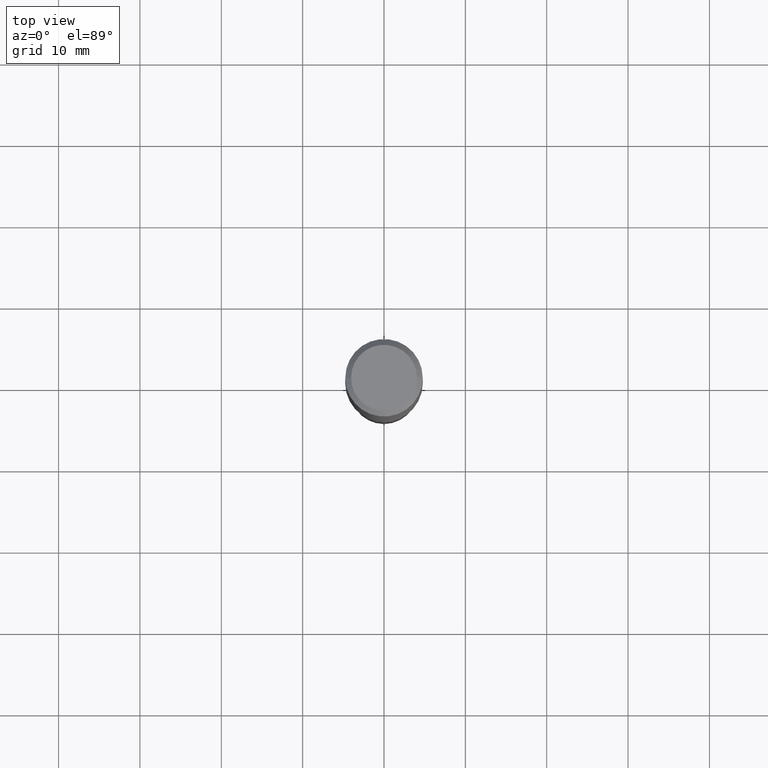
[diagram: clean part render]
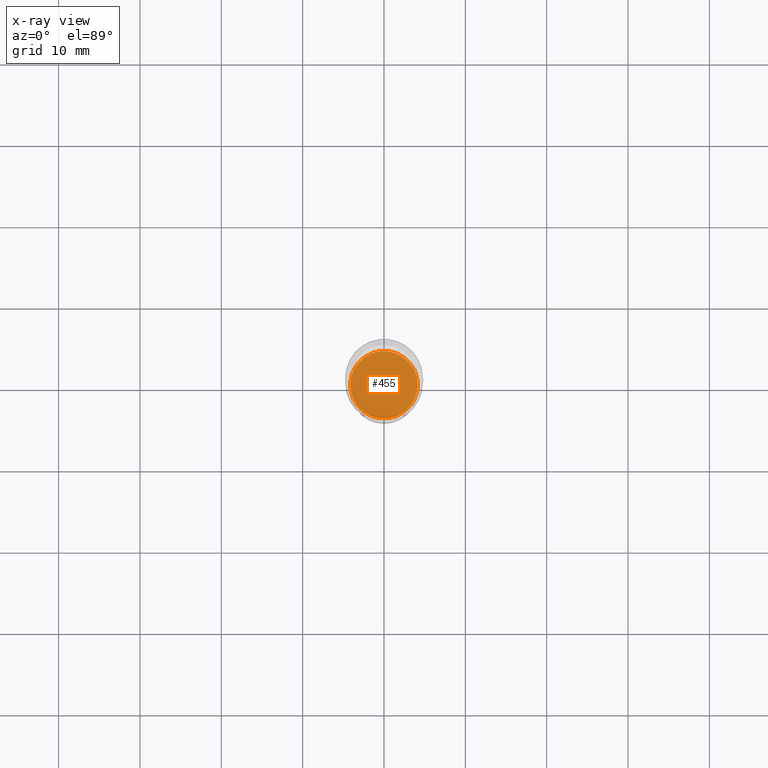
[diagram: x-ray — body ghosted, one internal face saturated and labeled with its STEP entity id]
A machine part, top view, then the same camera in x-ray: the body is ghosted and one INTERNAL B-rep face — a face not visible from any outside direction — is saturated and labeled: STEP entity #455.
In plain terms, the highlighted planar face has unit normal (-0, 0, 1).
Its self-contained STEP definition (entity closure, byte-faithful):
#51 = CARTESIAN_POINT ( 'NONE',  ( 0.1635500000000000009, -8.070209966602040664E-15, -1.984299999999999731 ) ) ;
#52 = DIRECTION ( 'NONE',  ( 1.000000000000000000, -6.982962677686265922E-15, 0.000000000000000000 ) ) ;
#66 = EDGE_CURVE ( 'NONE', #373, #424, #163, .T. ) ;
#86 = DIRECTION ( 'NONE',  ( 1.000000000000000000, -6.982962677686265922E-15, 4.876176775795935793E-29 ) ) ;
#120 = ORIENTED_EDGE ( 'NONE', *, *, #66, .F. ) ;
#154 = FACE_OUTER_BOUND ( 'NONE', #213, .T. ) ;
#163 = CIRCLE ( 'NONE', #226, 0.1635500000000000009 ) ;
#176 = ORIENTED_EDGE ( 'NONE', *, *, #278, .F. ) ;
#183 = DIRECTION ( 'NONE',  ( 1.000000000000000000, -6.982962677686265922E-15, 0.000000000000000000 ) ) ;
#185 = DIRECTION ( 'NONE',  ( -2.445468806185136597E-29, 3.491481338843145583E-15, 1.000000000000000000 ) ) ;
#201 = CARTESIAN_POINT ( 'NONE',  ( -0.1635500000000000009, -5.763404549156697933E-15, -1.984299999999999731 ) ) ;
#209 = DIRECTION ( 'NONE',  ( -2.445468806185136597E-29, 3.491481338843145583E-15, 1.000000000000000000 ) ) ;
#213 = EDGE_LOOP ( 'NONE', ( #120, #176 ) ) ;
#226 = AXIS2_PLACEMENT_3D ( 'NONE', #320, #209, #52 ) ;
#228 = CIRCLE ( 'NONE', #237, 0.1635500000000000009 ) ;
#237 = AXIS2_PLACEMENT_3D ( 'NONE', #323, #185, #183 ) ;
#277 = CARTESIAN_POINT ( 'NONE',  ( 4.852543752113166066E-29, -6.928146420666452798E-15, -1.984299999999999731 ) ) ;
#278 = EDGE_CURVE ( 'NONE', #424, #373, #228, .T. ) ;
#320 = CARTESIAN_POINT ( 'NONE',  ( 4.852543752113166066E-29, -6.928146420666452798E-15, -1.984299999999999731 ) ) ;
#323 = CARTESIAN_POINT ( 'NONE',  ( 4.852543752113166066E-29, -6.928146420666452798E-15, -1.984299999999999731 ) ) ;
#341 = PLANE ( 'NONE',  #467 ) ;
#373 = VERTEX_POINT ( 'NONE', #51 ) ;
#424 = VERTEX_POINT ( 'NONE', #201 ) ;
#426 = DIRECTION ( 'NONE',  ( -2.438088387897960049E-29, 3.491481338843145188E-15, 1.000000000000000000 ) ) ;
#455 = ADVANCED_FACE ( 'NONE', ( #154 ), #341, .F. ) ;
#467 = AXIS2_PLACEMENT_3D ( 'NONE', #277, #426, #86 ) ;